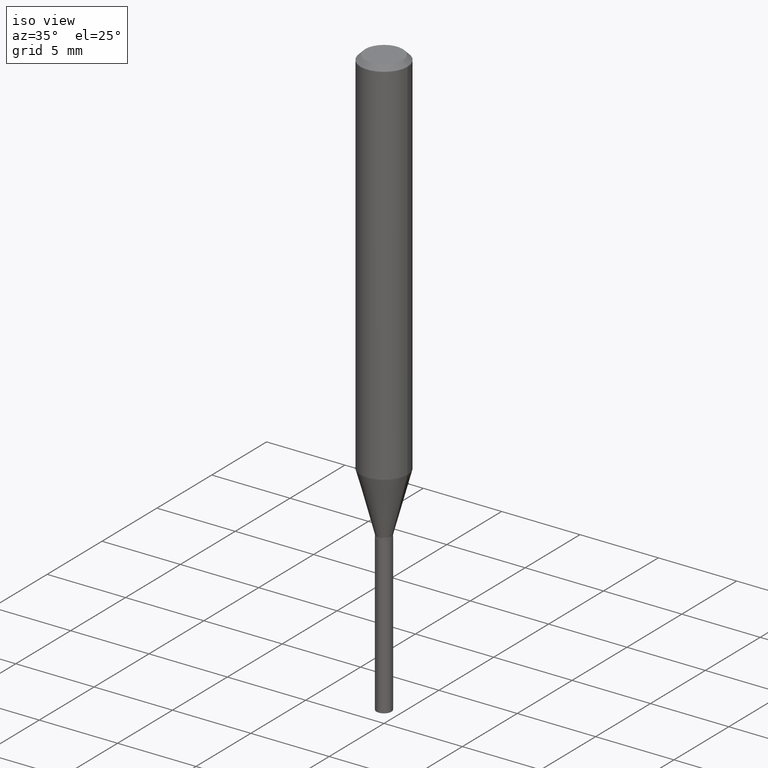
[diagram: clean part render]
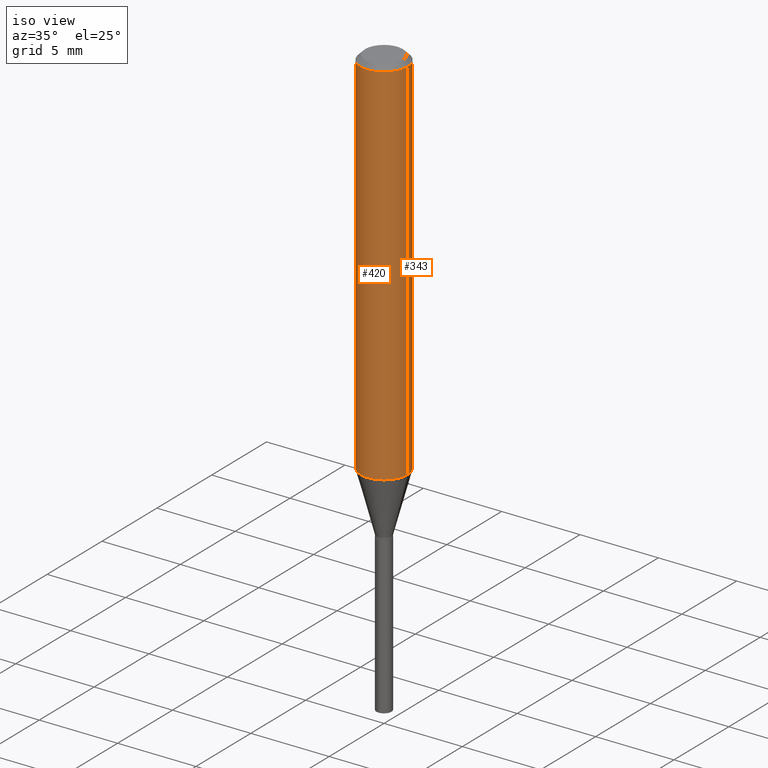
[diagram: same view with one multi-face feature highlighted, each face labeled with its STEP entity id]
A machine part, iso view. The highlighted faces form ONE feature: a constant-radius fillet chain: 2 tangent blend faces with common blend radius 1.4999 mm. The faces share edges in the B-rep.
Their STEP definitions:
[1] entity #343 (Cylinder):
#17 = ORIENTED_EDGE ( 'NONE', *, *, #454, .T. ) ;
#31 = CARTESIAN_POINT ( 'NONE',  ( 0.000000000000000000, 0.000000000000000000, 0.000000000000000000 ) ) ;
#34 = CARTESIAN_POINT ( 'NONE',  ( -0.05904999999999999832, -1.239090694261562746E-15, -0.01181000000000006871 ) ) ;
#36 = FACE_OUTER_BOUND ( 'NONE', #325, .T. ) ;
#39 = AXIS2_PLACEMENT_3D ( 'NONE', #31, #177, #67 ) ;
#41 = DIRECTION ( 'NONE',  ( 1.000000000000000000, -6.982962677686267499E-15, 0.000000000000000000 ) ) ;
#44 = AXIS2_PLACEMENT_3D ( 'NONE', #126, #487, #41 ) ;
#67 = DIRECTION ( 'NONE',  ( 1.000000000000000000, -6.982962677686266711E-15, 4.876176775795935793E-29 ) ) ;
#79 = CARTESIAN_POINT ( 'NONE',  ( 0.05904999999999999832, -4.535783407291118600E-16, -0.01181000000000006871 ) ) ;
#90 = VERTEX_POINT ( 'NONE', #181 ) ;
#126 = CARTESIAN_POINT ( 'NONE',  ( 2.294612114893132862E-29, -3.276097964844067539E-15, -0.9383117499145957607 ) ) ;
#133 = VECTOR ( 'NONE', #202, 39.37007874015748143 ) ;
#148 = CIRCLE ( 'NONE', #44, 0.05905000000000010935 ) ;
#177 = DIRECTION ( 'NONE',  ( -2.445468806185136597E-29, 3.491481338843145583E-15, 1.000000000000000000 ) ) ;
#181 = CARTESIAN_POINT ( 'NONE',  ( -0.05905000000000010935, -2.856522479377728046E-15, -0.9383117499145957607 ) ) ;
#185 = CARTESIAN_POINT ( 'NONE',  ( 0.05905000000000005383, -4.123439461173744271E-16, 2.879382386107502672E-30 ) ) ;
#188 = EDGE_CURVE ( 'NONE', #476, #311, #205, .T. ) ;
#202 = DIRECTION ( 'NONE',  ( -2.445468806185136877E-29, 3.491481338843145188E-15, 1.000000000000000000 ) ) ;
#205 = CIRCLE ( 'NONE', #262, 0.05904999999999999832 ) ;
#209 = ORIENTED_EDGE ( 'NONE', *, *, #188, .F. ) ;
#214 = ORIENTED_EDGE ( 'NONE', *, *, #442, .F. ) ;
#221 = DIRECTION ( 'NONE',  ( -2.445468806185136597E-29, 3.491481338843145583E-15, 1.000000000000000000 ) ) ;
#234 = CARTESIAN_POINT ( 'NONE',  ( -0.05905000000000005383, 4.195754854663395423E-16, -2.904631170795524694E-30 ) ) ;
#242 = CYLINDRICAL_SURFACE ( 'NONE', #39, 0.05905000000000005383 ) ;
#262 = AXIS2_PLACEMENT_3D ( 'NONE', #344, #221, #383 ) ;
#273 = ORIENTED_EDGE ( 'NONE', *, *, #379, .T. ) ;
#311 = VERTEX_POINT ( 'NONE', #34 ) ;
#325 = EDGE_LOOP ( 'NONE', ( #17, #273, #209, #214 ) ) ;
#342 = CARTESIAN_POINT ( 'NONE',  ( 0.05905000000000010935, -3.688441910961442459E-15, -0.9383117499145957607 ) ) ;
#343 = ADVANCED_FACE ( 'NONE', ( #36 ), #242, .T. ) ;
#344 = CARTESIAN_POINT ( 'NONE',  ( 2.888098660104663328E-31, -4.123439461173779030E-17, -0.01181000000000006871 ) ) ;
#353 = DIRECTION ( 'NONE',  ( -2.445468806185136877E-29, 3.491481338843145188E-15, 1.000000000000000000 ) ) ;
#369 = VECTOR ( 'NONE', #353, 39.37007874015748143 ) ;
#379 = EDGE_CURVE ( 'NONE', #90, #311, #432, .T. ) ;
#383 = DIRECTION ( 'NONE',  ( 1.000000000000000000, -6.982962677686266711E-15, 0.000000000000000000 ) ) ;
#414 = LINE ( 'NONE', #185, #133 ) ;
#432 = LINE ( 'NONE', #234, #369 ) ;
#442 = EDGE_CURVE ( 'NONE', #471, #476, #414, .T. ) ;
#454 = EDGE_CURVE ( 'NONE', #471, #90, #148, .T. ) ;
#471 = VERTEX_POINT ( 'NONE', #342 ) ;
#476 = VERTEX_POINT ( 'NONE', #79 ) ;
#487 = DIRECTION ( 'NONE',  ( -2.445468806185136597E-29, 3.491481338843145583E-15, 1.000000000000000000 ) ) ;
[2] entity #420 (Cylinder):
#34 = CARTESIAN_POINT ( 'NONE',  ( -0.05904999999999999832, -1.239090694261562746E-15, -0.01181000000000006871 ) ) ;
#47 = DIRECTION ( 'NONE',  ( 1.000000000000000000, -6.982962677686266711E-15, 4.876176775795935793E-29 ) ) ;
#59 = ORIENTED_EDGE ( 'NONE', *, *, #442, .T. ) ;
#68 = EDGE_LOOP ( 'NONE', ( #160, #196, #59, #204 ) ) ;
#74 = AXIS2_PLACEMENT_3D ( 'NONE', #194, #272, #119 ) ;
#79 = CARTESIAN_POINT ( 'NONE',  ( 0.05904999999999999832, -4.535783407291118600E-16, -0.01181000000000006871 ) ) ;
#82 = CARTESIAN_POINT ( 'NONE',  ( 0.000000000000000000, 0.000000000000000000, 0.000000000000000000 ) ) ;
#90 = VERTEX_POINT ( 'NONE', #181 ) ;
#119 = DIRECTION ( 'NONE',  ( 1.000000000000000000, -6.982962677686267499E-15, 0.000000000000000000 ) ) ;
#120 = FACE_OUTER_BOUND ( 'NONE', #68, .T. ) ;
#131 = EDGE_CURVE ( 'NONE', #311, #476, #228, .T. ) ;
#133 = VECTOR ( 'NONE', #202, 39.37007874015748143 ) ;
#151 = AXIS2_PLACEMENT_3D ( 'NONE', #82, #348, #47 ) ;
#160 = ORIENTED_EDGE ( 'NONE', *, *, #379, .F. ) ;
#181 = CARTESIAN_POINT ( 'NONE',  ( -0.05905000000000010935, -2.856522479377728046E-15, -0.9383117499145957607 ) ) ;
#185 = CARTESIAN_POINT ( 'NONE',  ( 0.05905000000000005383, -4.123439461173744271E-16, 2.879382386107502672E-30 ) ) ;
#194 = CARTESIAN_POINT ( 'NONE',  ( 2.294612114893132862E-29, -3.276097964844067539E-15, -0.9383117499145957607 ) ) ;
#195 = DIRECTION ( 'NONE',  ( 1.000000000000000000, -6.982962677686266711E-15, 0.000000000000000000 ) ) ;
#196 = ORIENTED_EDGE ( 'NONE', *, *, #429, .T. ) ;
#202 = DIRECTION ( 'NONE',  ( -2.445468806185136877E-29, 3.491481338843145188E-15, 1.000000000000000000 ) ) ;
#204 = ORIENTED_EDGE ( 'NONE', *, *, #131, .F. ) ;
#228 = CIRCLE ( 'NONE', #274, 0.05904999999999999832 ) ;
#234 = CARTESIAN_POINT ( 'NONE',  ( -0.05905000000000005383, 4.195754854663395423E-16, -2.904631170795524694E-30 ) ) ;
#272 = DIRECTION ( 'NONE',  ( -2.445468806185136597E-29, 3.491481338843145583E-15, 1.000000000000000000 ) ) ;
#274 = AXIS2_PLACEMENT_3D ( 'NONE', #355, #349, #195 ) ;
#311 = VERTEX_POINT ( 'NONE', #34 ) ;
#342 = CARTESIAN_POINT ( 'NONE',  ( 0.05905000000000010935, -3.688441910961442459E-15, -0.9383117499145957607 ) ) ;
#348 = DIRECTION ( 'NONE',  ( -2.445468806185136597E-29, 3.491481338843145583E-15, 1.000000000000000000 ) ) ;
#349 = DIRECTION ( 'NONE',  ( -2.445468806185136597E-29, 3.491481338843145583E-15, 1.000000000000000000 ) ) ;
#353 = DIRECTION ( 'NONE',  ( -2.445468806185136877E-29, 3.491481338843145188E-15, 1.000000000000000000 ) ) ;
#355 = CARTESIAN_POINT ( 'NONE',  ( 2.888098660104663328E-31, -4.123439461173779030E-17, -0.01181000000000006871 ) ) ;
#369 = VECTOR ( 'NONE', #353, 39.37007874015748143 ) ;
#379 = EDGE_CURVE ( 'NONE', #90, #311, #432, .T. ) ;
#414 = LINE ( 'NONE', #185, #133 ) ;
#420 = ADVANCED_FACE ( 'NONE', ( #120 ), #422, .T. ) ;
#422 = CYLINDRICAL_SURFACE ( 'NONE', #151, 0.05905000000000005383 ) ;
#429 = EDGE_CURVE ( 'NONE', #90, #471, #430, .T. ) ;
#430 = CIRCLE ( 'NONE', #74, 0.05905000000000010935 ) ;
#432 = LINE ( 'NONE', #234, #369 ) ;
#442 = EDGE_CURVE ( 'NONE', #471, #476, #414, .T. ) ;
#471 = VERTEX_POINT ( 'NONE', #342 ) ;
#476 = VERTEX_POINT ( 'NONE', #79 ) ;